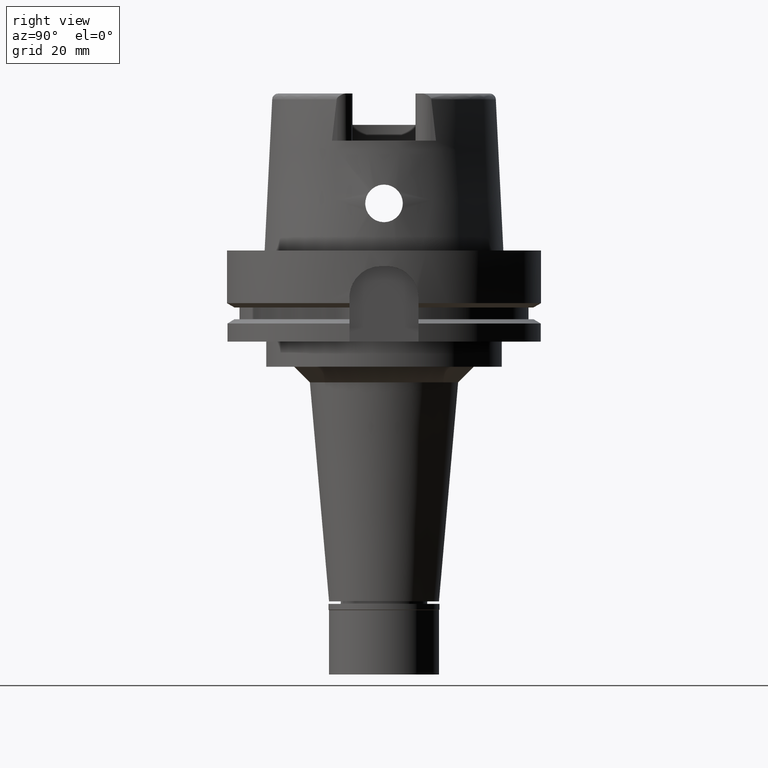
[diagram: clean part render]
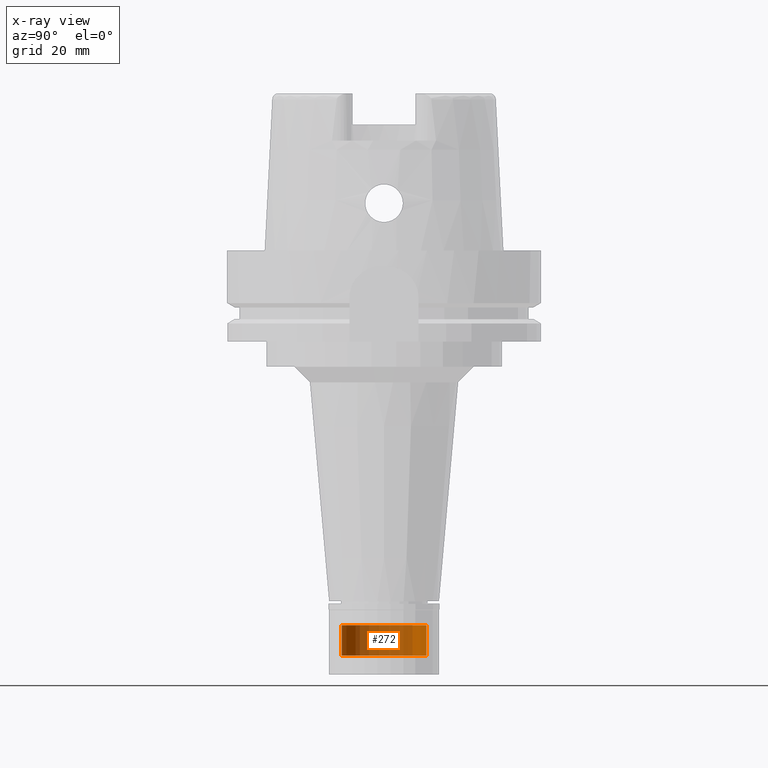
[diagram: x-ray — body ghosted, one internal face saturated and labeled with its STEP entity id]
A machine part, right view, then the same camera in x-ray: the body is ghosted and one INTERNAL B-rep face — a face not visible from any outside direction — is saturated and labeled: STEP entity #272.
In plain terms, the highlighted cylindrical surface (partial cylindrical patch) has radius 13.5 mm, axis along (0, 0, -1).
Its self-contained STEP definition (entity closure, byte-faithful):
#85 = EDGE_CURVE ( 'NONE', #3682, #1393, #1861, .T. ) ;
#129 = DIRECTION ( 'NONE',  ( 0.0000000000000000000, 0.0000000000000000000, -1.000000000000000000 ) ) ;
#272 = ADVANCED_FACE ( 'NONE', ( #3409 ), #3013, .F. ) ;
#411 = DIRECTION ( 'NONE',  ( 0.0000000000000000000, -1.000000000000000000, 0.0000000000000000000 ) ) ;
#467 = DIRECTION ( 'NONE',  ( 0.0000000000000000000, 0.0000000000000000000, -1.000000000000000000 ) ) ;
#504 = EDGE_CURVE ( 'NONE', #3682, #3712, #1153, .T. ) ;
#822 = EDGE_LOOP ( 'NONE', ( #2601, #4108, #1074, #3351 ) ) ;
#861 = AXIS2_PLACEMENT_3D ( 'NONE', #4094, #129, #974 ) ;
#931 = LINE ( 'NONE', #3459, #2107 ) ;
#974 = DIRECTION ( 'NONE',  ( 0.0000000000000000000, -1.000000000000000000, 0.0000000000000000000 ) ) ;
#1074 = ORIENTED_EDGE ( 'NONE', *, *, #85, .T. ) ;
#1153 = LINE ( 'NONE', #3452, #5111 ) ;
#1393 = VERTEX_POINT ( 'NONE', #5587 ) ;
#1478 = CARTESIAN_POINT ( 'NONE',  ( 0.0000000000000000000, -13.50000000000000000, -16.50000000000000000 ) ) ;
#1702 = DIRECTION ( 'NONE',  ( 0.0000000000000000000, 0.0000000000000000000, 1.000000000000000000 ) ) ;
#1861 = CIRCLE ( 'NONE', #5296, 13.50000000000000000 ) ;
#2107 = VECTOR ( 'NONE', #3940, 1000.000000000000000 ) ;
#2134 = CARTESIAN_POINT ( 'NONE',  ( 0.0000000000000000000, 0.0000000000000000000, -6.799999999999999822 ) ) ;
#2189 = CARTESIAN_POINT ( 'NONE',  ( 0.0000000000000000000, 0.0000000000000000000, -16.50000000000000000 ) ) ;
#2601 = ORIENTED_EDGE ( 'NONE', *, *, #2722, .T. ) ;
#2722 = EDGE_CURVE ( 'NONE', #4851, #3712, #2869, .T. ) ;
#2869 = CIRCLE ( 'NONE', #4491, 13.50000000000000000 ) ;
#2883 = DIRECTION ( 'NONE',  ( 0.0000000000000000000, 0.0000000000000000000, 1.000000000000000000 ) ) ;
#3013 = CYLINDRICAL_SURFACE ( 'NONE', #861, 13.50000000000000000 ) ;
#3326 = EDGE_CURVE ( 'NONE', #1393, #4851, #931, .T. ) ;
#3351 = ORIENTED_EDGE ( 'NONE', *, *, #3326, .T. ) ;
#3409 = FACE_OUTER_BOUND ( 'NONE', #822, .T. ) ;
#3438 = DIRECTION ( 'NONE',  ( 0.0000000000000000000, 1.000000000000000000, 0.0000000000000000000 ) ) ;
#3452 = CARTESIAN_POINT ( 'NONE',  ( 0.0000000000000000000, -13.50000000000000000, -16.50000000000000000 ) ) ;
#3459 = CARTESIAN_POINT ( 'NONE',  ( 0.0000000000000000000, 13.50000000000000000, -16.50000000000000000 ) ) ;
#3682 = VERTEX_POINT ( 'NONE', #1478 ) ;
#3712 = VERTEX_POINT ( 'NONE', #4693 ) ;
#3940 = DIRECTION ( 'NONE',  ( 0.0000000000000000000, 0.0000000000000000000, 1.000000000000000000 ) ) ;
#4094 = CARTESIAN_POINT ( 'NONE',  ( 0.0000000000000000000, 0.0000000000000000000, 0.0000000000000000000 ) ) ;
#4108 = ORIENTED_EDGE ( 'NONE', *, *, #504, .F. ) ;
#4491 = AXIS2_PLACEMENT_3D ( 'NONE', #2134, #1702, #3438 ) ;
#4693 = CARTESIAN_POINT ( 'NONE',  ( 0.0000000000000000000, -13.50000000000000000, -6.799999999999999822 ) ) ;
#4851 = VERTEX_POINT ( 'NONE', #5336 ) ;
#5111 = VECTOR ( 'NONE', #2883, 1000.000000000000000 ) ;
#5296 = AXIS2_PLACEMENT_3D ( 'NONE', #2189, #467, #411 ) ;
#5336 = CARTESIAN_POINT ( 'NONE',  ( 0.0000000000000000000, 13.50000000000000000, -6.799999999999999822 ) ) ;
#5587 = CARTESIAN_POINT ( 'NONE',  ( 0.0000000000000000000, 13.50000000000000000, -16.50000000000000000 ) ) ;